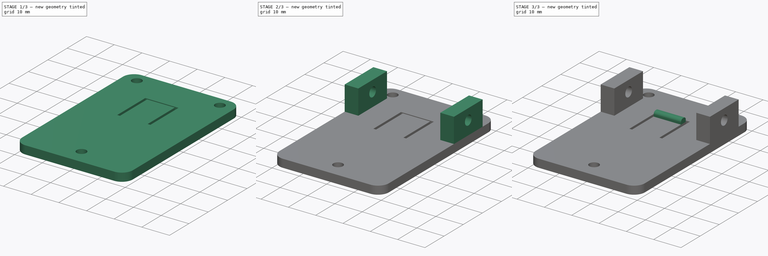
[diagram: build sequence overview — one tinted view per stage of 3, left to right]
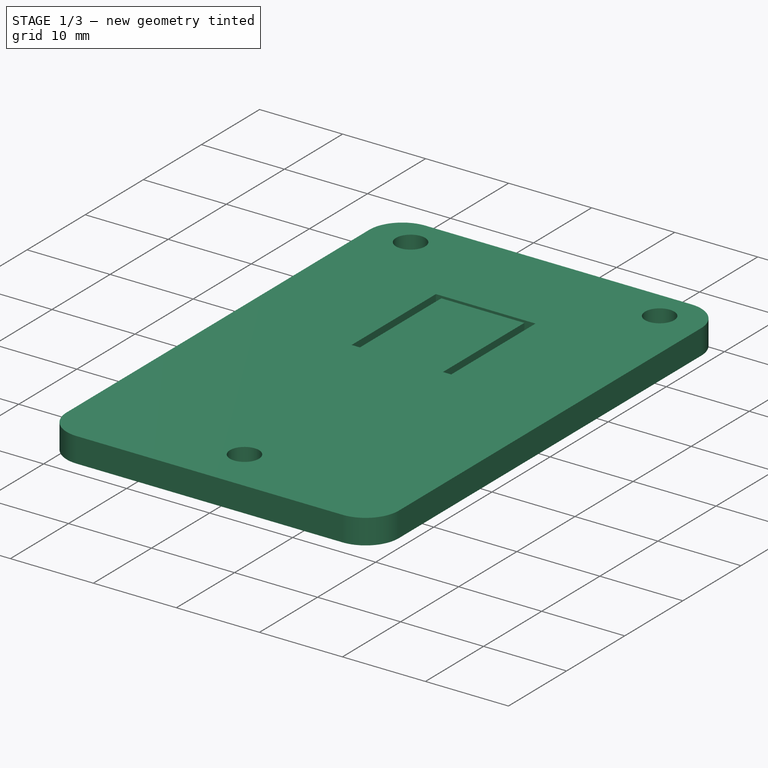
[diagram: stage 1 of 3 — iso view after this stage's code; geometry added in this stage tinted green]
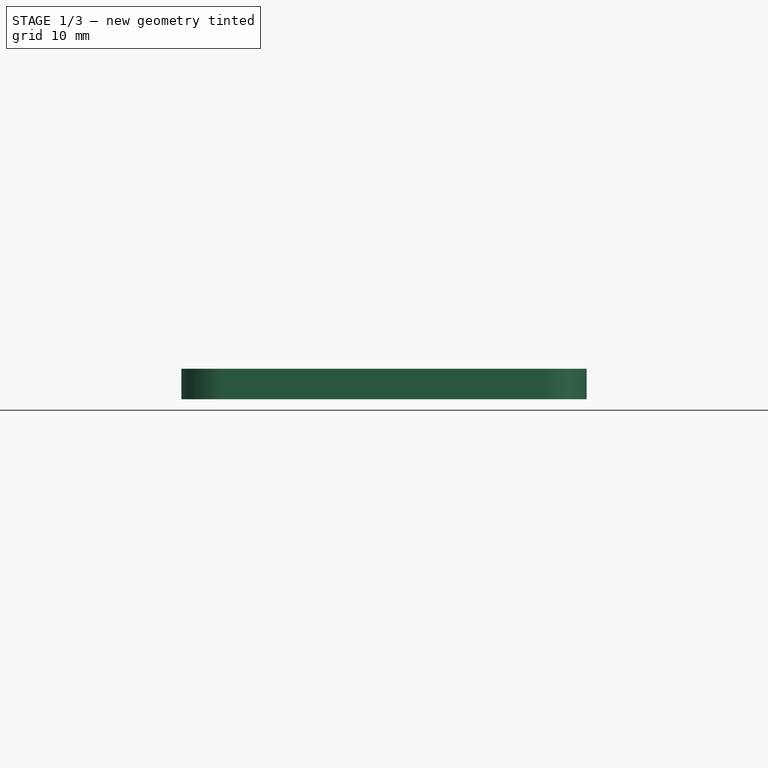
[diagram: stage 1 of 3 — front view after this stage's code; geometry added in this stage tinted green]
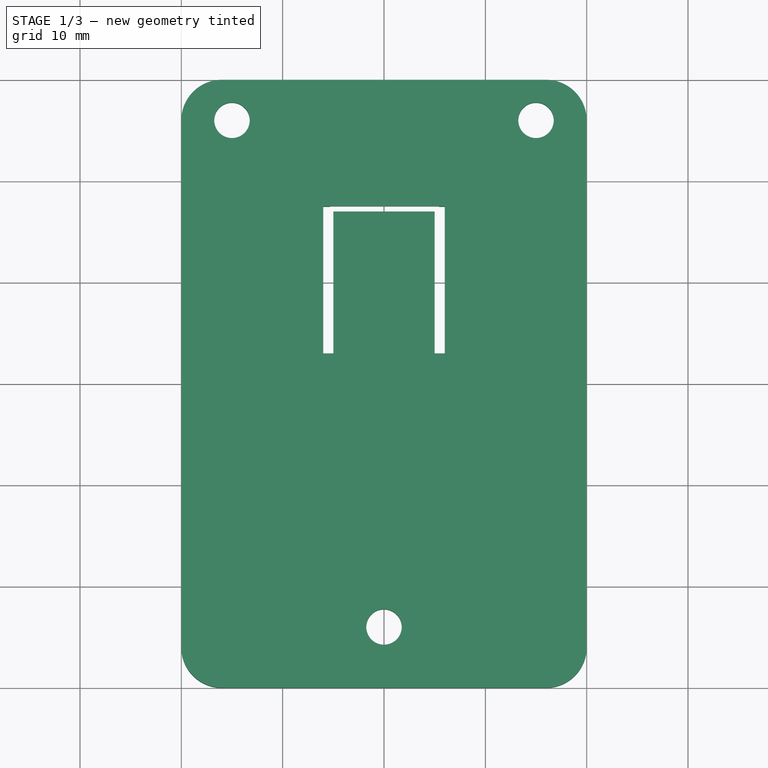
[diagram: stage 1 of 3 — top view after this stage's code; geometry added in this stage tinted green]
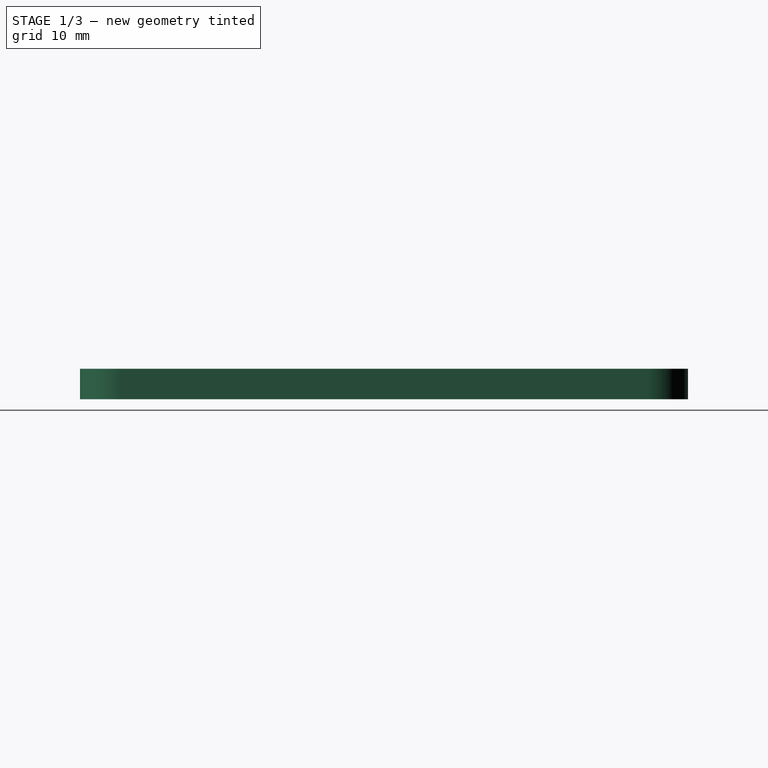
[diagram: stage 1 of 3 — right view after this stage's code; geometry added in this stage tinted green]
FCSTD DOCUMENT  (FreeCAD 0.19R24267 +99 (Git))
Label: T41 stand V010
License: All rights reserved
LicenseURL: http://en.wikipedia.org/wiki/All_rights_reserved
objects: Sketcher::SketchObject×5, PartDesign::Pad×3, PartDesign::Pocket×2, PartDesign::Fillet×1, PartDesign::Body×1
note: 18 computed .brp shape members not serialized (recipe doc carries the construction recipe); baked Part::Feature solids carry a one-line shape summary decoded from their .brp

FEATURE [Sketcher::SketchObject] Sketch
  FullyConstrained = false
  MapMode = 5
  Support = -> [XY_Plane]
  sketch-geometry (20):
    g0: LineSegment StartX=-16 StartY=30 StartZ=0 EndX=16 EndY=30 EndZ=0
    g1: LineSegment StartX=20 StartY=26 StartZ=0 EndX=20 EndY=-26 EndZ=0
    g2: LineSegment StartX=16 StartY=-30 StartZ=0 EndX=-16 EndY=-30 EndZ=0
    g3: LineSegment StartX=-20 StartY=-26 StartZ=0 EndX=-20 EndY=26 EndZ=0
    g4: LineSegment StartX=6 StartY=3 StartZ=0 EndX=5 EndY=3 EndZ=0
    g5: LineSegment StartX=-0.726574 StartY=31.1373 StartZ=0 EndX=-0.726574 EndY=31.2022 EndZ=0
    g6: LineSegment StartX=-5 StartY=3 StartZ=0 EndX=-6 EndY=3 EndZ=0
    g7: ArcOfCircle CenterX=-16 CenterY=26 CenterZ=0 NormalX=0 NormalY=0 NormalZ=1 AngleXU=0 Radius=4 StartAngle=1.5708 EndAngle=3.14159
    g8: ArcOfCircle CenterX=16 CenterY=26 CenterZ=0 NormalX=0 NormalY=0 NormalZ=1 AngleXU=0 Radius=4 StartAngle=0 EndAngle=1.5708
    g9: Circle CenterX=-15 CenterY=26 CenterZ=0 NormalX=0 NormalY=0 NormalZ=1 AngleXU=0 Radius=1.75
    g10: Circle CenterX=15 CenterY=26 CenterZ=0 NormalX=0 NormalY=0 NormalZ=1 AngleXU=0 Radius=1.75
    g11: Circle CenterX=0 CenterY=-24 CenterZ=0 NormalX=0 NormalY=0 NormalZ=1 AngleXU=0 Radius=1.75
    g12: ArcOfCircle CenterX=-16 CenterY=-26 CenterZ=0 NormalX=0 NormalY=0 NormalZ=1 AngleXU=0 Radius=4 StartAngle=3.14159 EndAngle=4.71239
    g13: ArcOfCircle CenterX=16 CenterY=-26 CenterZ=0 NormalX=0 NormalY=0 NormalZ=1 AngleXU=0 Radius=4 StartAngle=4.71239 EndAngle=6.28319
    g14: LineSegment StartX=-6 StartY=17.5 StartZ=0 EndX=6 EndY=17.5 EndZ=0
    g15: LineSegment StartX=-5 StartY=17 StartZ=0 EndX=5 EndY=17 EndZ=0
    g16: LineSegment StartX=-5 StartY=3 StartZ=0 EndX=-5 EndY=17 EndZ=0
    g17: LineSegment StartX=5 StartY=17 StartZ=0 EndX=5 EndY=3 EndZ=0
    g18: LineSegment StartX=-6 StartY=3 StartZ=0 EndX=-6 EndY=17.5 EndZ=0
    g19: LineSegment StartX=6 StartY=3 StartZ=0 EndX=6 EndY=17.5 EndZ=0
  constraints (53):
    c: Horizontal(g0)
    c: Horizontal(g2)
    c: Vertical(g1)
    c: Vertical(g3)
    c: Horizontal(g4)
    c: Vertical(g5)
    c: DistanceX(g6,g-1) = 6
    c: DistanceX(g6,g6) = 1
    c: DistanceX(g4,g4) = 1
    c: Tangent(g4,g6)
    c: DistanceX(g6,g4) = 12
    c: DistanceY(g-1,g4) = 3
    c: Tangent(g0,g7) = 1.5708
    c: Tangent(g3,g7) = 1.5708
    c: Tangent(g0,g8) = 1.5708
    c: Tangent(g1,g8) = 1.5708
    c: Radius(g7) = 4
    c: Radius(g8) = 4
    c: DistanceY(g-1,g0) = 30
    c: Radius(g9) = 1.75
    c: Radius(g10) = 1.75
    c: DistanceX(g9,g10) = 30
    c: Horizontal(g9,g10)
    c: DistanceX(g9,g-1) = 15
    c: DistanceY(g-1,g9) = 26
    c: PointOnObject(g11,g-2)
    c: Radius(g11) = 1.75
    c: DistanceY(g11,g-1) = 24
    c: Tangent(g3,g12) = 1.5708
    c: Tangent(g2,g12) = 1.5708
    c: Tangent(g1,g13) = 1.5708
    c: Tangent(g2,g13) = 1.5708
    c: Equal(g12,g13)
    c: Radius(g12) = 4
    c: DistanceX(g3,g1) = 40
    c: DistanceY(g2,g-1) = 30
    c: DistanceX(g3,g-1) = 20
    c: Horizontal(g14)
    c: Horizontal(g15)
    c: Coincident(g16,g6)
    c: Coincident(g16,g15)
    c: Vertical(g16)
    c: Coincident(g17,g15)
    c: Coincident(g17,g4)
    c: Vertical(g17)
    c: DistanceY(g17,g17) = 14
    c: Coincident(g18,g6)
    c: Coincident(g18,g14)
    c: Vertical(g18)
    c: Coincident(g19,g4)
    c: Coincident(g19,g14)
    c: Vertical(g19)
    c: DistanceY(g19,g19) = 14.5
FEATURE [PartDesign::Pad] Pad
  Direction = (1,1,1)
  Length = 3
  Length2 = 100
  Profile = -> Sketch
  Type = 0
FEATURE [Sketcher::SketchObject] Sketch001
  FullyConstrained = true
  MapMode = 5
  Support = -> [XY_Plane]
  sketch-geometry (4):
    g0: LineSegment StartX=5.43 StartY=6 StartZ=0 EndX=-5.33 EndY=6 EndZ=0
    g1: LineSegment StartX=-5.33 StartY=6 StartZ=0 EndX=-5.33 EndY=19.97 EndZ=0
    g2: LineSegment StartX=-5.33 StartY=19.97 StartZ=0 EndX=5.43 EndY=19.97 EndZ=0
    g3: LineSegment StartX=5.43 StartY=19.97 StartZ=0 EndX=5.43 EndY=6 EndZ=0
  constraints (12):
    c: Coincident(g0,g1)
    c: Coincident(g1,g2)
    c: Coincident(g2,g3)
    c: Coincident(g3,g0)
    c: Horizontal(g0)
    c: Horizontal(g2)
    c: Vertical(g1)
    c: Vertical(g3)
    c: DistanceX(g0,g0) = 10.76
    c: DistanceY(g1,g1) = 13.97
    c: DistanceY(g-1,g0) = 6
    c: DistanceX(g0,g-1) = 5.33
FEATURE [PartDesign::Pocket] Pocket
  BaseFeature = -> Pad
  Length = 1.5
  Length2 = 100
  Profile = -> Sketch001
  Reversed = true
  Type = 0
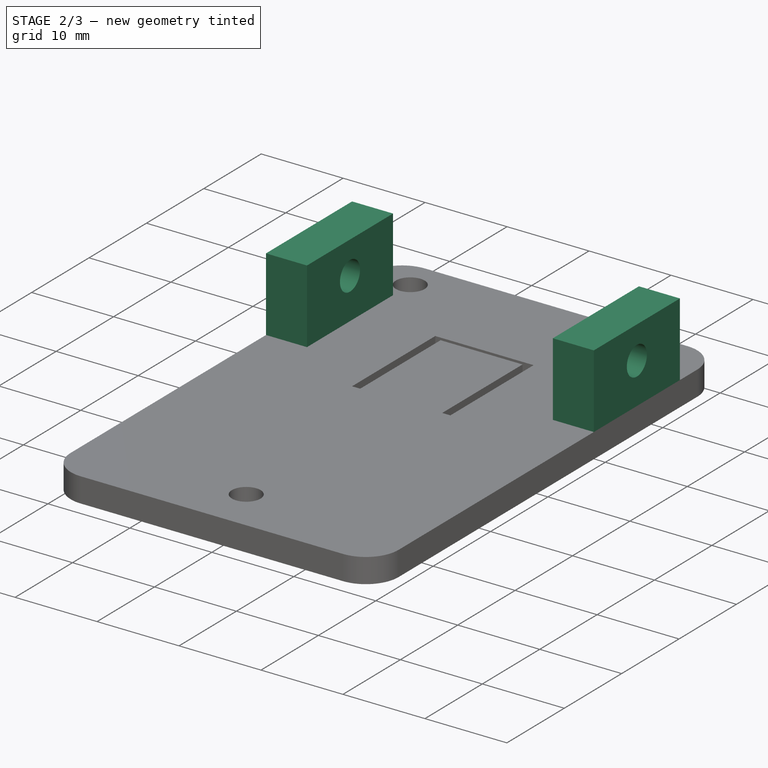
[diagram: stage 2 of 3 — iso view after this stage's code; geometry added in this stage tinted green]
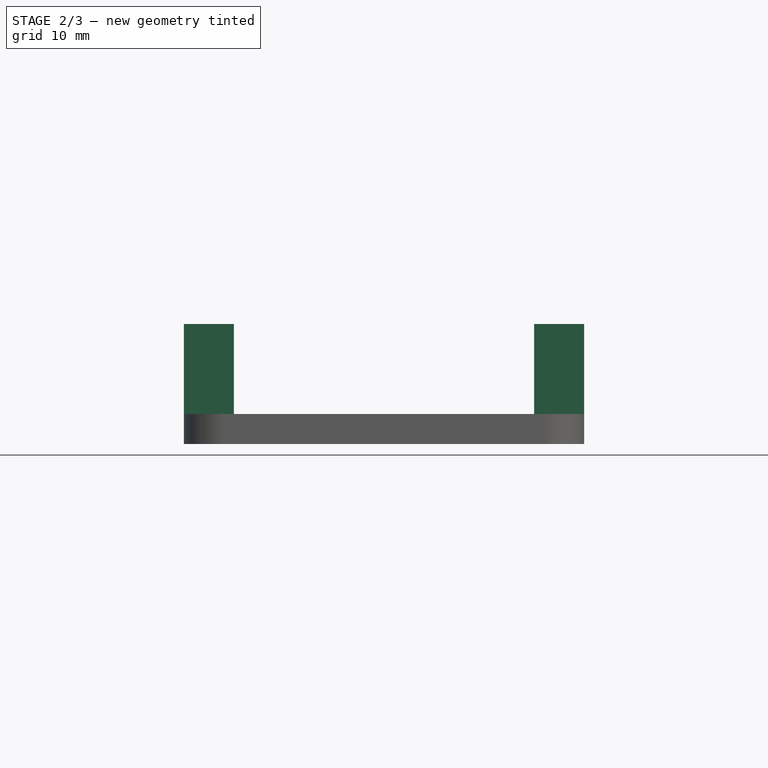
[diagram: stage 2 of 3 — front view after this stage's code; geometry added in this stage tinted green]
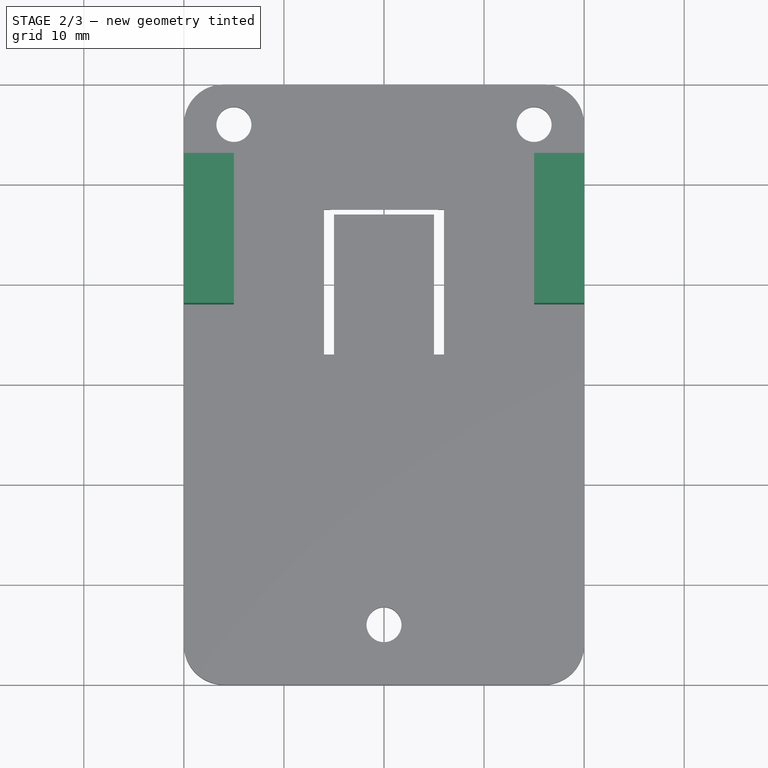
[diagram: stage 2 of 3 — top view after this stage's code; geometry added in this stage tinted green]
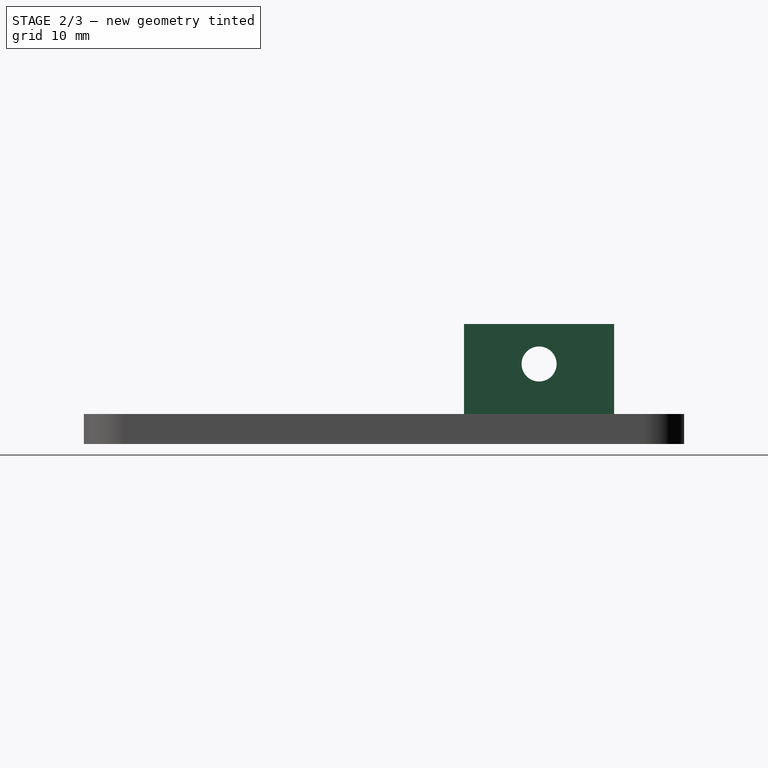
[diagram: stage 2 of 3 — right view after this stage's code; geometry added in this stage tinted green]
FEATURE [Sketcher::SketchObject] Sketch002
  AttachmentOffset = pos=(0,0,3) rot=(0,0,1;0rad)
  FullyConstrained = true
  MapMode = 5
  Placement = pos=(0,0,3) rot=(0,0,1;0rad)
  Support = -> [XY_Plane]
  sketch-geometry (8):
    g0: LineSegment StartX=20 StartY=23 StartZ=0 EndX=15 EndY=23 EndZ=0
    g1: LineSegment StartX=15 StartY=23 StartZ=0 EndX=15 EndY=8 EndZ=0
    g2: LineSegment StartX=15 StartY=8 StartZ=0 EndX=20 EndY=8 EndZ=0
    g3: LineSegment StartX=20 StartY=8 StartZ=0 EndX=20 EndY=23 EndZ=0
    g4: LineSegment StartX=-20 StartY=23 StartZ=0 EndX=-15 EndY=23 EndZ=0
    g5: LineSegment StartX=-15 StartY=23 StartZ=0 EndX=-15 EndY=8 EndZ=0
    g6: LineSegment StartX=-15 StartY=8 StartZ=0 EndX=-20 EndY=8 EndZ=0
    g7: LineSegment StartX=-20 StartY=8 StartZ=0 EndX=-20 EndY=23 EndZ=0
  constraints (24):
    c: Coincident(g0,g1)
    c: Coincident(g1,g2)
    c: Coincident(g2,g3)
    c: Coincident(g3,g0)
    c: Horizontal(g0)
    c: Horizontal(g2)
    c: Vertical(g1)
    c: Vertical(g3)
    c: Coincident(g4,g5)
    c: Coincident(g5,g6)
    c: Coincident(g6,g7)
    c: Coincident(g7,g4)
    c: Horizontal(g4)
    c: Horizontal(g6)
    c: Vertical(g5)
    c: Vertical(g7)
    c: DistanceX(g4,g4) = 5
    c: DistanceX(g0,g0) = 5
    c: DistanceX(g6,g-1) = 20
    c: DistanceX(g-1,g2) = 20
    c: DistanceY(g3,g3) = 15
    c: DistanceY(g7,g7) = 15
    c: DistanceY(g-1,g1) = 8
    c: DistanceY(g-1,g5) = 8
FEATURE [PartDesign::Pad] Pad001  label="Side Block"
  BaseFeature = -> Pocket
  Direction = (1,1,1)
  Length = 9
  Length2 = 100
  Profile = -> Sketch002
  Type = 0
FEATURE [Sketcher::SketchObject] Sketch003
  AttachmentOffset = pos=(0,0,20) rot=(0,0,1;0rad)
  FullyConstrained = true
  MapMode = 5
  Placement = pos=(20,-4.4e-15,4.4e-15) rot=(0.57735,0.57735,0.57735;2.0944rad)
  Support = -> [YZ_Plane]
  sketch-geometry (1):
    g0: Circle CenterX=15.5 CenterY=8 CenterZ=0 NormalX=0 NormalY=0 NormalZ=1 AngleXU=0 Radius=1.75
  constraints (3):
    c: Radius(g0) = 1.75
    c: DistanceX(g-1,g0) = 15.5
    c: DistanceY(g-1,g0) = 8
FEATURE [PartDesign::Pocket] Pocket001  label="Side holes"
  BaseFeature = -> Pad001
  Length = 50
  Length2 = 100
  Profile = -> Sketch003
  Type = 0
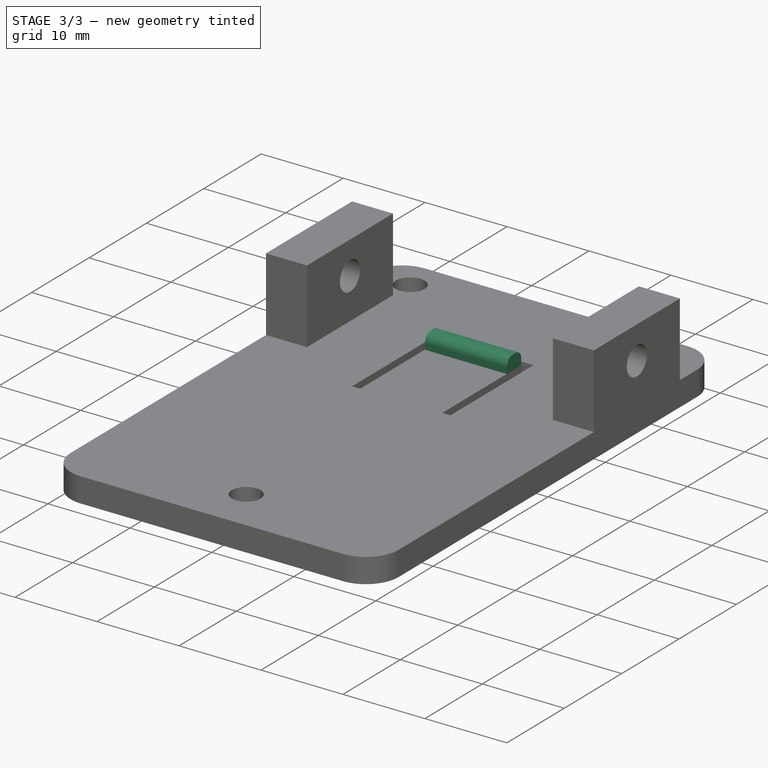
[diagram: stage 3 of 3 — iso view after this stage's code; geometry added in this stage tinted green]
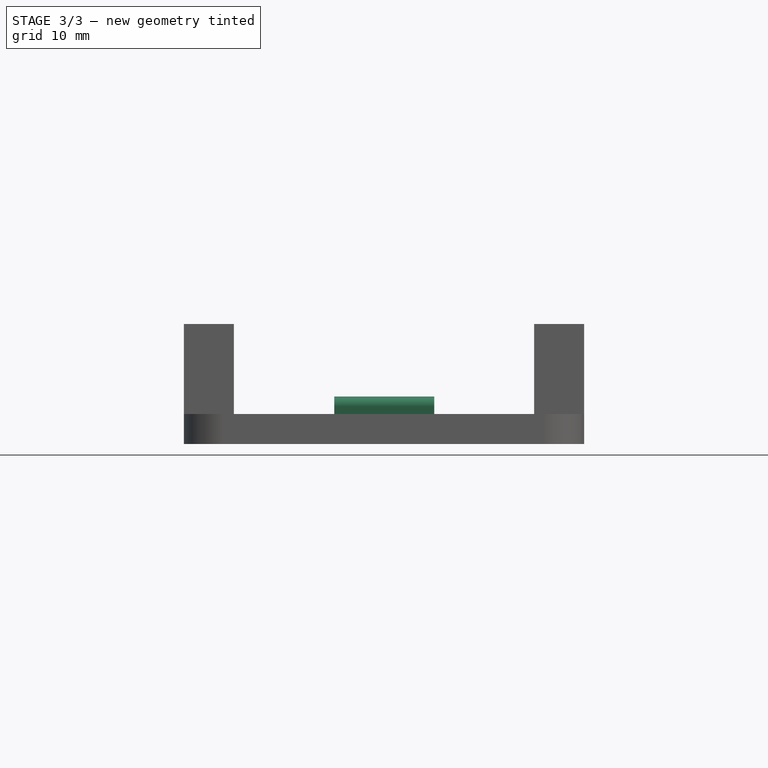
[diagram: stage 3 of 3 — front view after this stage's code; geometry added in this stage tinted green]
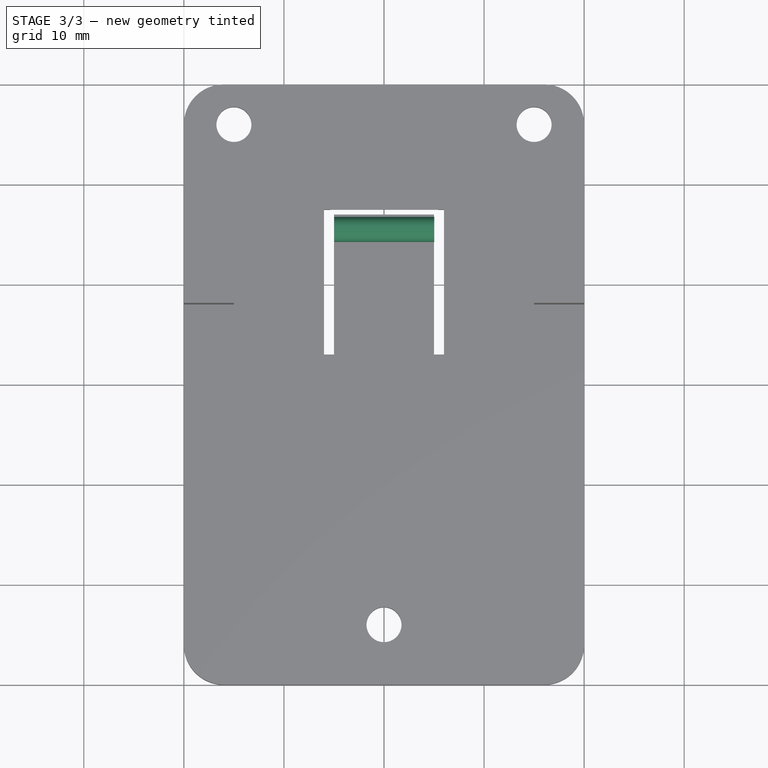
[diagram: stage 3 of 3 — top view after this stage's code; geometry added in this stage tinted green]
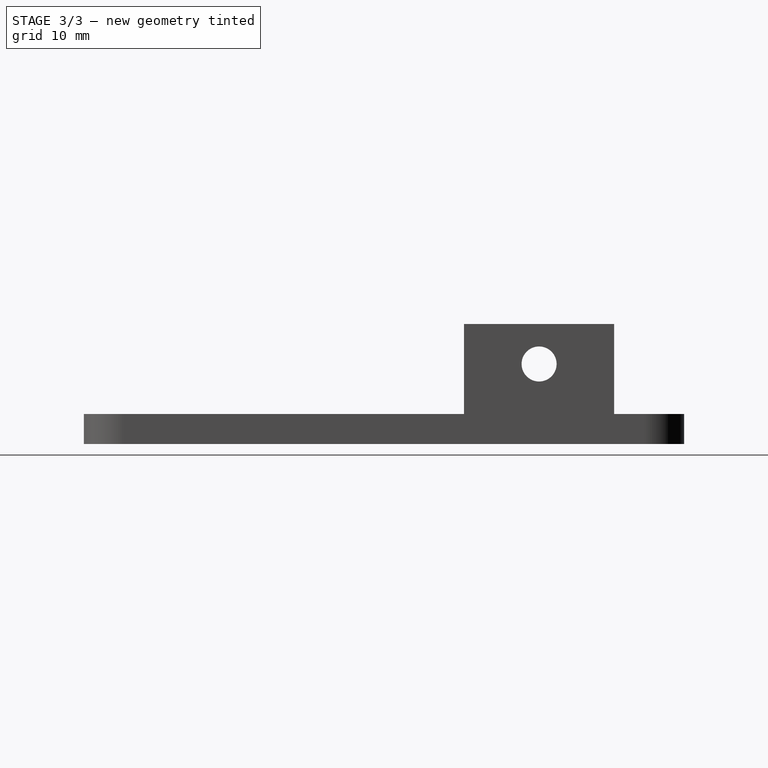
[diagram: stage 3 of 3 — right view after this stage's code; geometry added in this stage tinted green]
FEATURE [Sketcher::SketchObject] Sketch004
  AttachmentOffset = pos=(0,0,3) rot=(0,0,1;0rad)
  FullyConstrained = false
  MapMode = 5
  Placement = pos=(0,0,3) rot=(0,0,1;0rad)
  Support = -> [XY_Plane]
  sketch-geometry (4):
    g0: LineSegment StartX=-4.97543 StartY=16.75 StartZ=0 EndX=5.02457 EndY=16.75 EndZ=0
    g1: LineSegment StartX=5.02457 StartY=16.75 StartZ=0 EndX=5.02457 EndY=14.25 EndZ=0
    g2: LineSegment StartX=5.02457 StartY=14.25 StartZ=0 EndX=-4.97543 EndY=14.25 EndZ=0
    g3: LineSegment StartX=-4.97543 StartY=14.25 StartZ=0 EndX=-4.97543 EndY=16.75 EndZ=0
  constraints (11):
    c: Coincident(g0,g1)
    c: Coincident(g1,g2)
    c: Coincident(g2,g3)
    c: Coincident(g3,g0)
    c: Horizontal(g0)
    c: Horizontal(g2)
    c: Vertical(g1)
    c: Vertical(g3)
    c: DistanceY(g3,g3) = 2.5
    c: DistanceX(g2,g2) = 10
    c: DistanceY(g-1,g2) = 14.25
FEATURE [PartDesign::Pad] Pad002  label="Detent"
  BaseFeature = -> Pocket001
  Direction = (1,1,1)
  Length = 1.75
  Length2 = 100
  Profile = -> Sketch004
  Type = 0
FEATURE [PartDesign::Fillet] Fillet
  Base = -> Pad002 [Edge111,Edge116]
  BaseFeature = -> Pad002
  Radius = 1
  SupportTransform = false
FEATURE [PartDesign::Body] Body
  Group = -> [Sketch,Pad,Sketch001,Pocket,Sketch002,Pad001,Sketch003,Pocket001,Sketch004,Pad002,Fillet]
  Origin = -> Origin
  Tip = -> Fillet
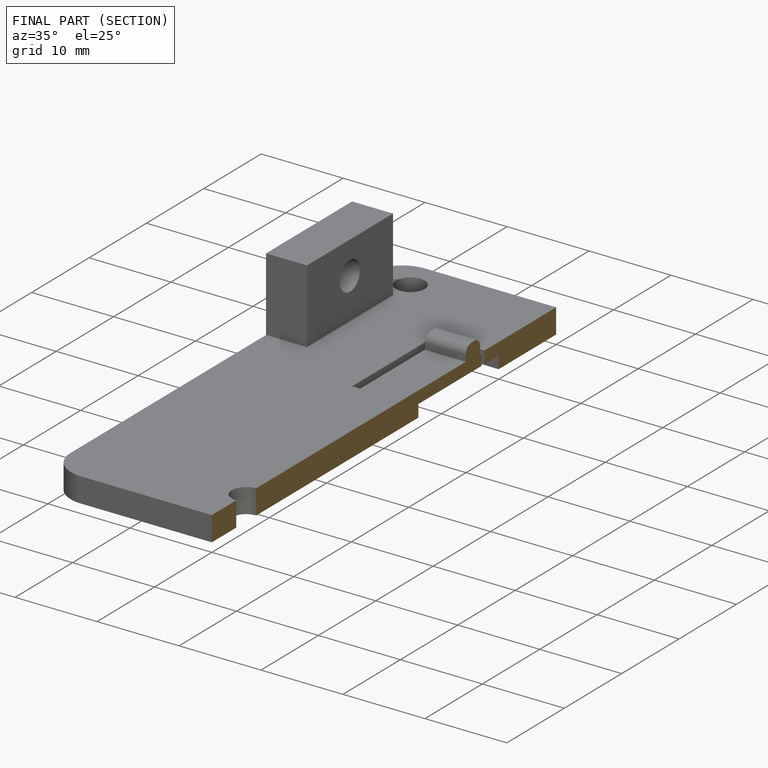
[diagram: finished part — half-section view (interior)]
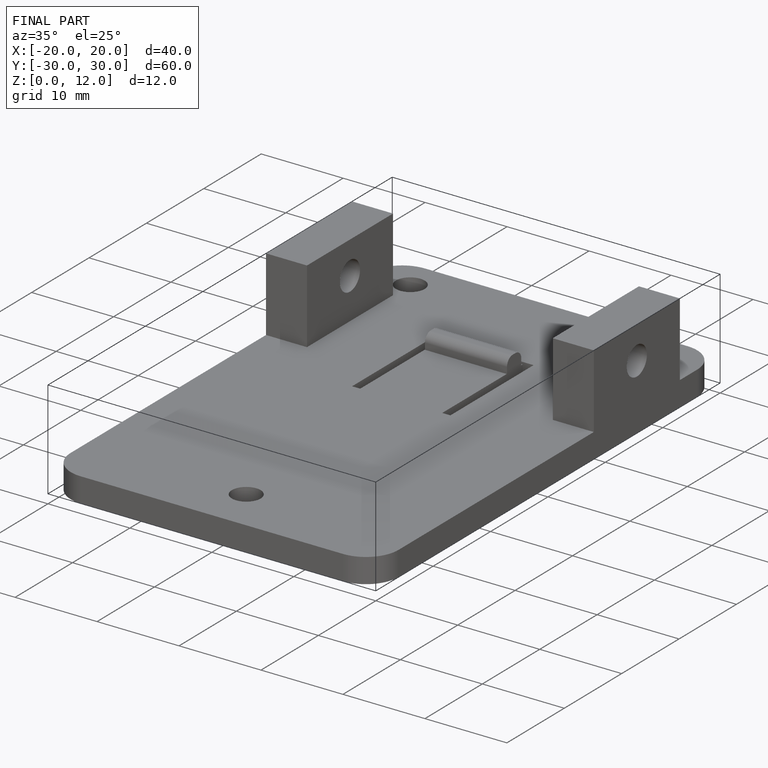
[diagram: finished part — iso view with bounding-box wireframe]
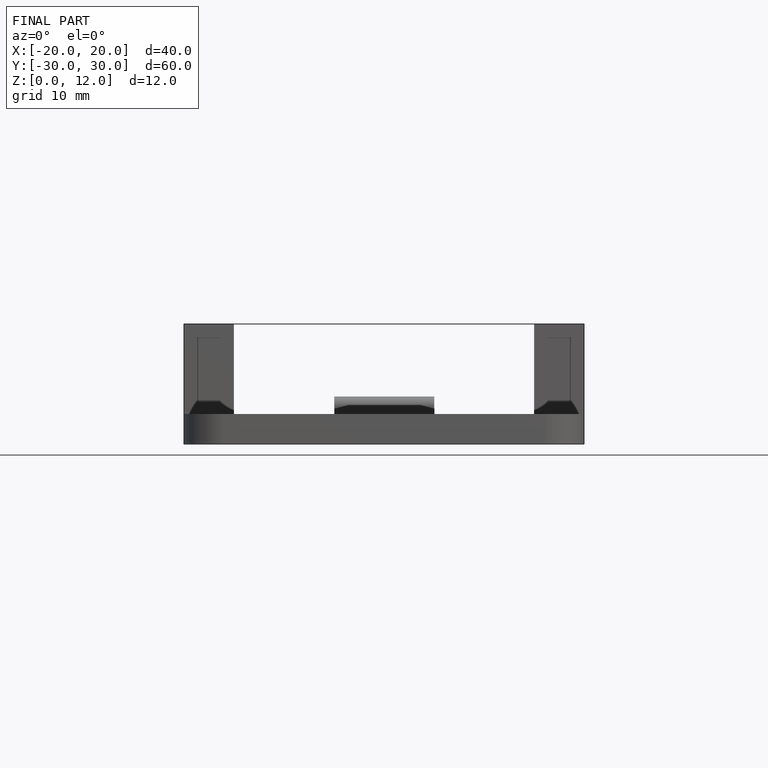
[diagram: finished part — front view with bounding-box wireframe]
